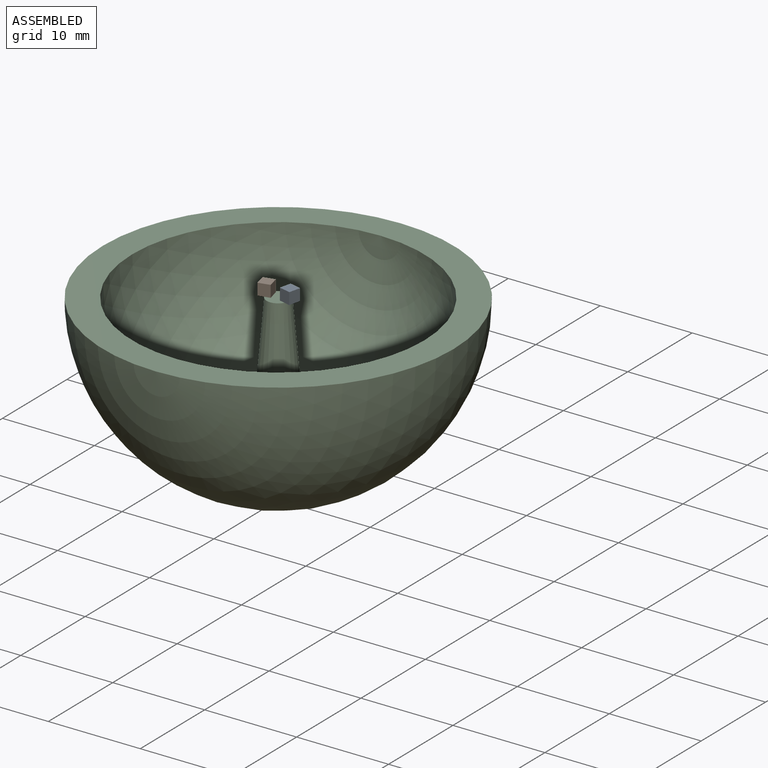
[diagram: assembled view]
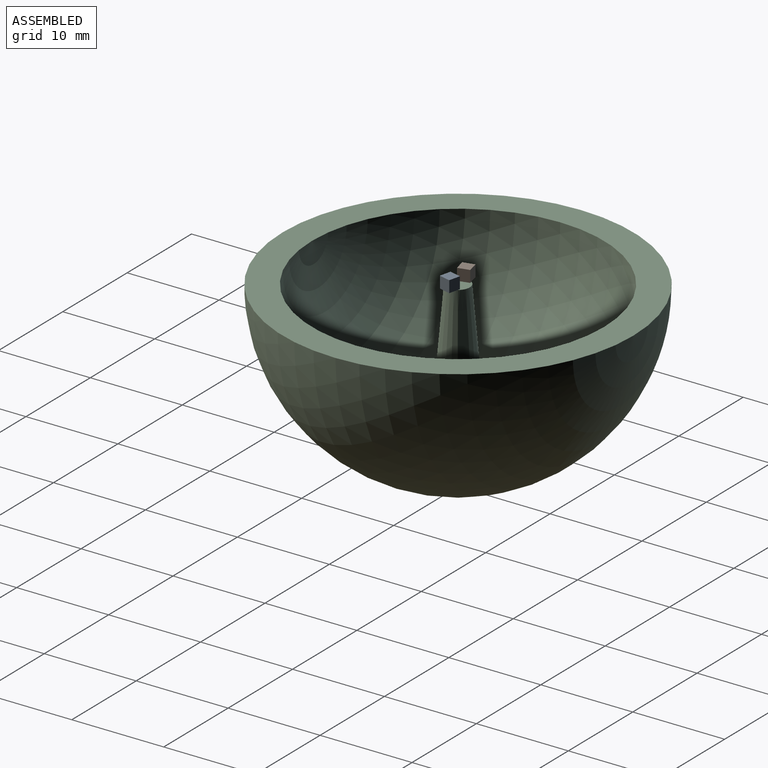
[diagram: assembled view, second angle]
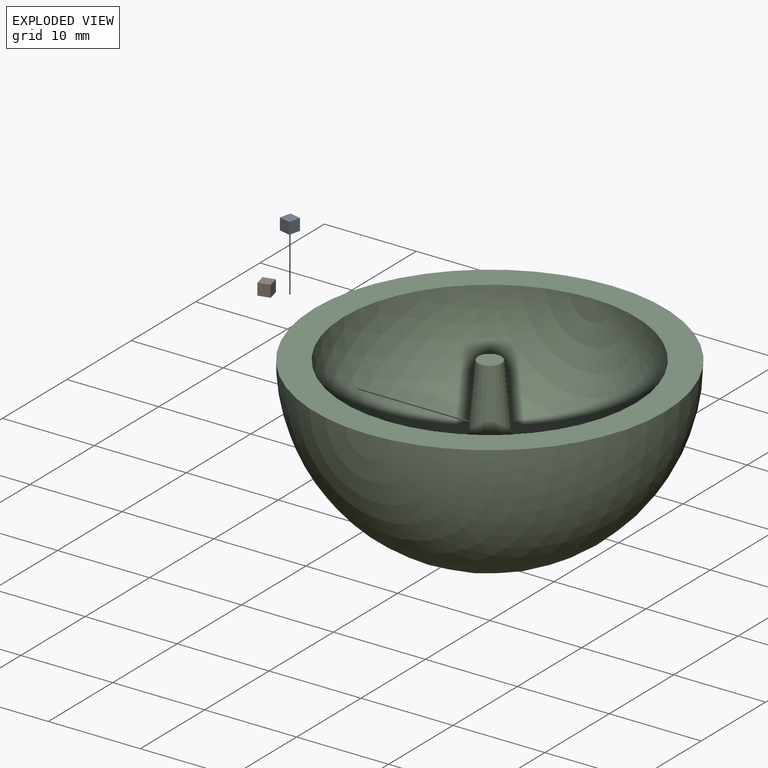
[diagram: exploded view]
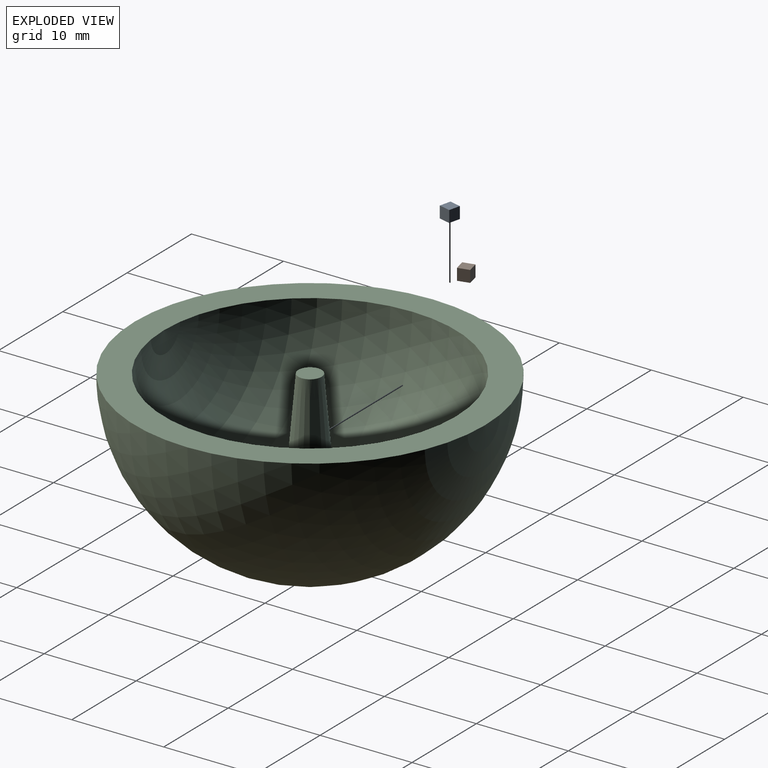
[diagram: exploded view, second angle]
ASSEMBLY  parts=3 mates=2
PART A: 6 faces, bbox 1.3x1.3x1.3 mm
  f0: plane 1.27x1.27mm, normal (1,0,0), area 1.6mm2, adj f1,f3,f4,f5
  f1: plane 1.27x1.27mm, normal (0,1,0), area 1.6mm2, adj f0,f2,f4,f5
  f2: plane 1.27x1.27mm, normal (-1,0,0), area 1.6mm2, adj f1,f3,f4,f5
  f3: plane 1.27x1.27mm, normal (0,-1,0), area 1.6mm2, adj f0,f2,f4,f5
  f4: plane 1.27x1.27mm, normal (0,0,1), area 1.6mm2, adj f0,f1,f2,f3
  f5: plane 1.27x1.27mm, normal (0,0,-1), area 1.6mm2, adj f0,f1,f2,f3
PART B: same geometry as A
PART C: 5 faces, bbox 38.1x38.1x19.1 mm
  f0: sphere r=19.05mm, area 2280.2mm2, adj f1
  f1: plane 38.1x38.1mm, normal (0,0,1), area 348.4mm2, adj f0,f2
  f2: sphere r=15.88mm, area 1561.4mm2, adj f1,f3
  f3: cone r=1.27mm half-angle=5deg, axis (0,0,-1), area 193mm2, adj f2,f4
  f4: plane 2.54x2.54mm, normal (0,0,1), area 5.1mm2, adj f3
PLACE A rot(axis=(0,0,-1),103.6deg) t=(1.27,0,0)mm
PLACE B rot(axis=(0,0,-1),166.4deg) t=(-1.27,0,0)mm
PLACE C at identity fixed
MATE revolute A.f5 <-> C.f4  axis (0,0,-1) through (1.27,0,0)mm
MATE revolute B.f5 <-> C.f4  axis (0,0,-1) through (-1.27,0,0)mm
